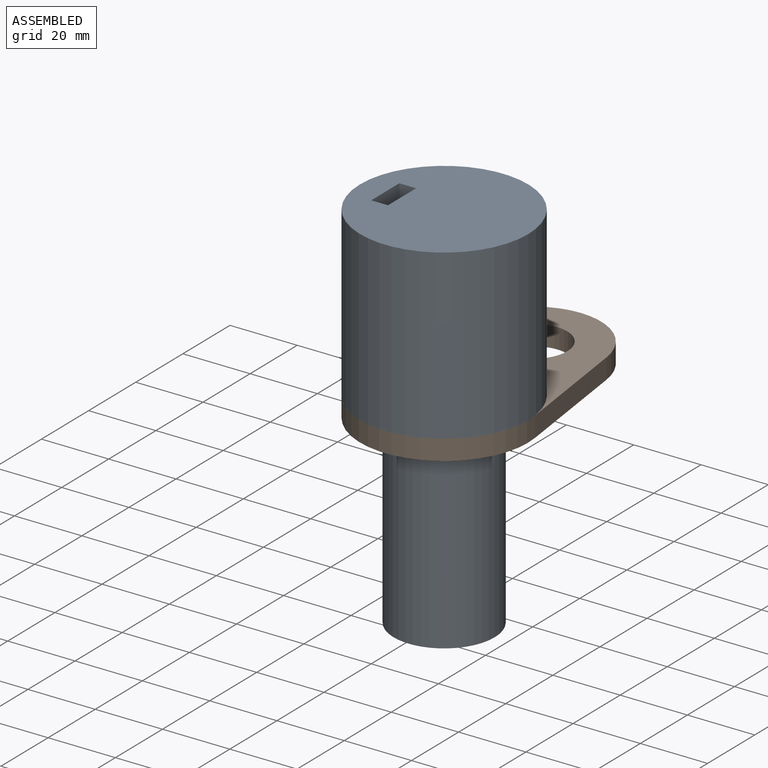
[diagram: assembled view]
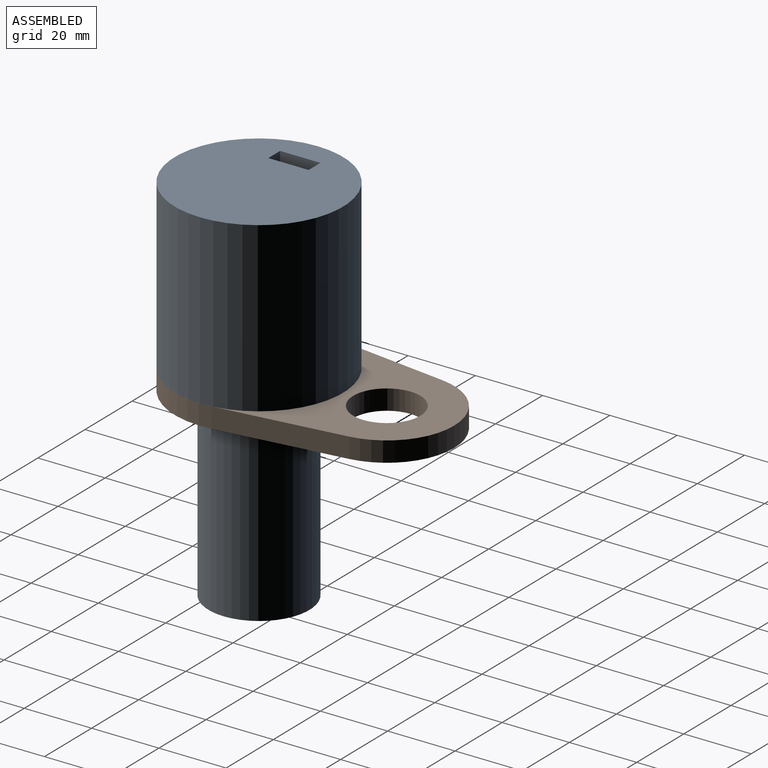
[diagram: assembled view, second angle]
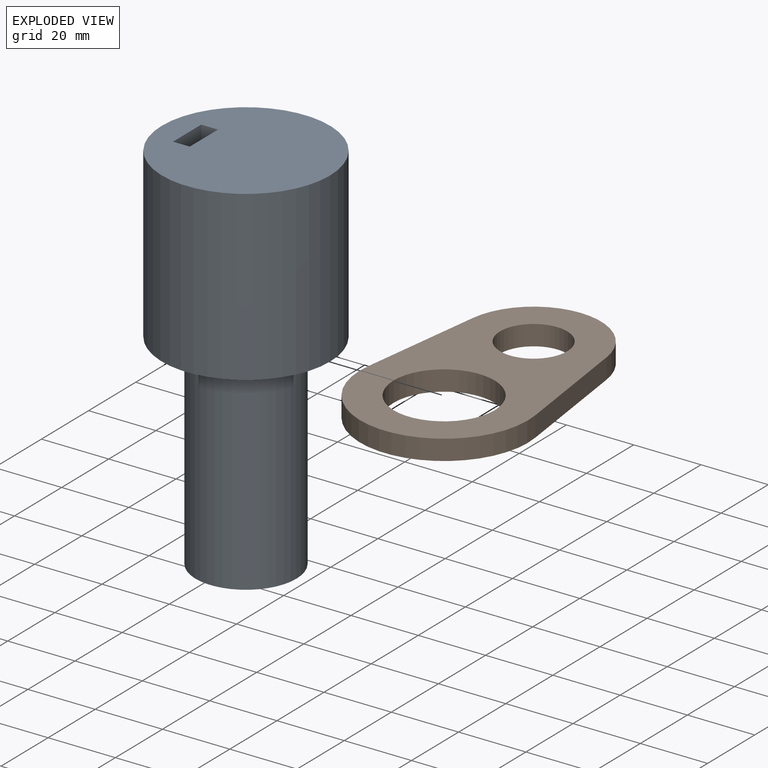
[diagram: exploded view]
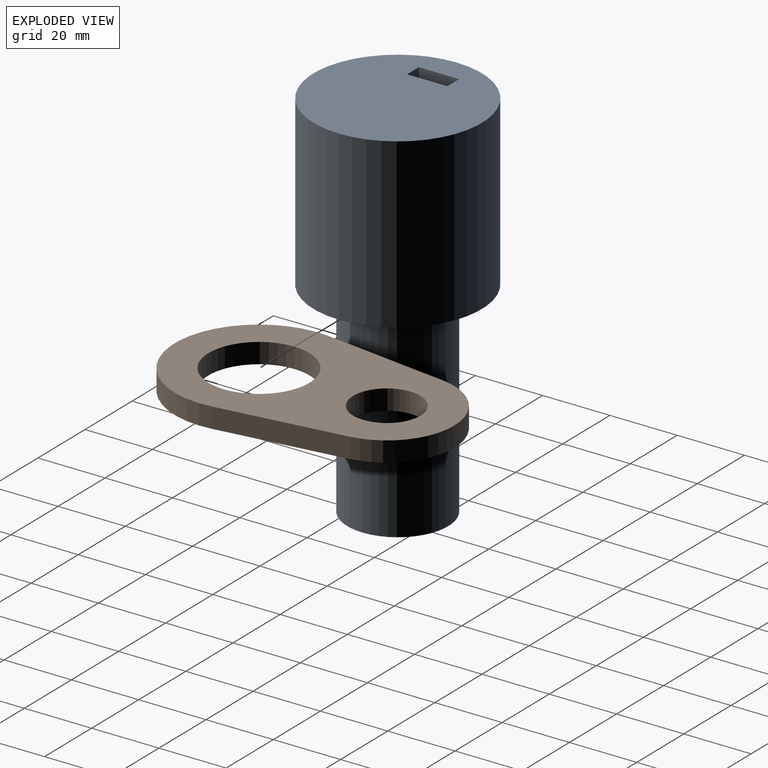
[diagram: exploded view, second angle]
ASSEMBLY  parts=2 mates=2
PART A: 10 faces, bbox 50x50x111 mm
  f0: cylinder r=15mm len=61mm, axis (0,0,-1), area 5749.1mm2, adj f1,f4
  f1: plane 30x30mm, normal (0,0,-1), area 706.9mm2, adj f0
  f2: cylinder r=25mm len=50mm, axis (0,0,-1), area 7854mm2, adj f3,f4
  f3: plane 50x50mm, normal (0,0,1), area 1903.5mm2, adj f2,f5,f6,f7,f8
  f4: plane 50x50mm, normal (0,0,-1), area 1256.6mm2, adj f0,f2
  f5: plane 25x12mm, normal (-1,0,0), area 300mm2, adj f3,f6,f8,f9
  f6: plane 25x5mm, normal (0,-1,0), area 125mm2, adj f3,f5,f7,f9
  f7: plane 25x12mm, normal (1,0,0), area 300mm2, adj f3,f6,f8,f9
  f8: plane 25x5mm, normal (0,1,0), area 125mm2, adj f3,f5,f7,f9
  f9: plane 12x5mm, normal (0,0,1), area 60mm2, adj f5,f6,f7,f8
PART B: 8 faces, bbox 50x83x6 mm
  f0: plane 37.34x6mm, normal (-0.99,0.13,0), area 226mm2, adj f1,f4,f6,f7
  f1: cylinder r=25mm len=50mm, axis (0,0,-1), area 510.8mm2, adj f0,f2,f6,f7
  f2: plane 37.34x6mm, normal (0.99,0.13,0), area 226mm2, adj f1,f4,f6,f7
  f3: cylinder r=15mm len=30mm, axis (0,0,-1), area 565.5mm2, adj f6,f7
  f4: cylinder r=20mm len=39.65mm, axis (0,0,-1), area 345.3mm2, adj f0,f2,f6,f7
  f5: cylinder r=10mm len=20mm, axis (0,0,-1), area 377mm2, adj f6,f7
  f6: plane 83x50mm, normal (0,0,1), area 2313.9mm2, adj f0,f1,f2,f3,f4,f5
  f7: plane 83x50mm, normal (0,0,-1), area 2313.9mm2, adj f0,f1,f2,f3,f4,f5
PLACE A t=(17.5,6,-111)mm
PLACE B t=(17.5,6,-56)mm
MATE fastened B.f3 <-> A.f0  axis (0,0,1) through (17.5,6,-50)mm
MATE slider B.f3 <-> A.f0  axis (0,0,-1) through (17.5,6,-53)mm
